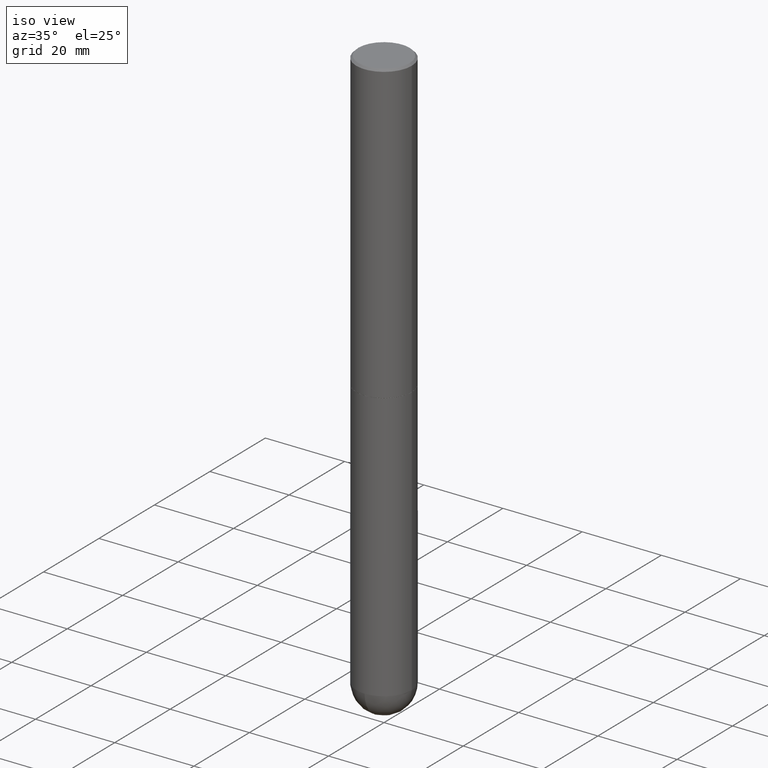
[diagram: clean part render]
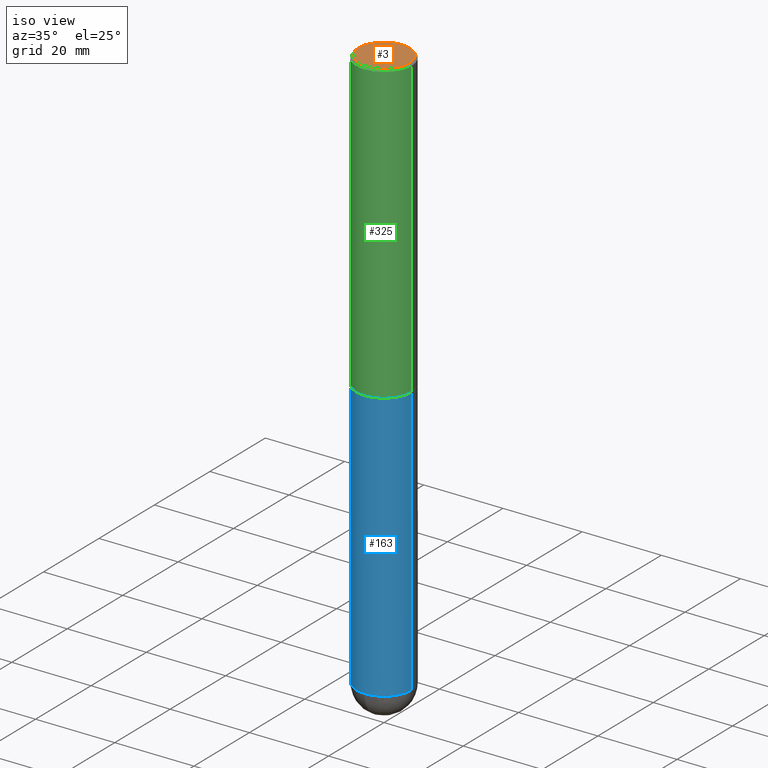
[diagram: same view with three faces highlighted in distinct colors, each labeled with its STEP entity id]
A machine part, iso view with three faces highlighted in distinct colors.
Their STEP definitions:

[orange] entity #3 — the highlighted planar face has unit normal (0, -0, -1).
#3 = ADVANCED_FACE ( 'NONE', ( #37 ), #167, .F. ) ;
#14 = DIRECTION ( 'NONE',  ( -2.445468806185136597E-29, 3.491481338843145583E-15, 1.000000000000000000 ) ) ;
#16 = AXIS2_PLACEMENT_3D ( 'NONE', #255, #389, #103 ) ;
#19 = CIRCLE ( 'NONE', #391, 0.2556000000000000494 ) ;
#25 = ORIENTED_EDGE ( 'NONE', *, *, #79, .T. ) ;
#37 = FACE_OUTER_BOUND ( 'NONE', #66, .T. ) ;
#64 = DIRECTION ( 'NONE',  ( -2.445468806185136597E-29, 3.491481338843145583E-15, 1.000000000000000000 ) ) ;
#65 = VERTEX_POINT ( 'NONE', #359 ) ;
#66 = EDGE_LOOP ( 'NONE', ( #25, #197 ) ) ;
#79 = EDGE_CURVE ( 'NONE', #65, #219, #97, .T. ) ;
#89 = CARTESIAN_POINT ( 'NONE',  ( 0.2556000000000000494, -1.857063081596550820E-15, -4.695363739109179444E-17 ) ) ;
#93 = CARTESIAN_POINT ( 'NONE',  ( 1.148236555768741665E-45, -1.639377487418492057E-31, -4.695363739110452099E-17 ) ) ;
#97 = CIRCLE ( 'NONE', #203, 0.2556000000000000494 ) ;
#103 = DIRECTION ( 'NONE',  ( -1.000000000000000000, 6.982962677686265922E-15, -4.876176775795935793E-29 ) ) ;
#167 = PLANE ( 'NONE',  #16 ) ;
#174 = CARTESIAN_POINT ( 'NONE',  ( 1.148236555768741665E-45, -1.639377487418492057E-31, -4.695363739110452099E-17 ) ) ;
#197 = ORIENTED_EDGE ( 'NONE', *, *, #207, .T. ) ;
#203 = AXIS2_PLACEMENT_3D ( 'NONE', #174, #14, #304 ) ;
#207 = EDGE_CURVE ( 'NONE', #219, #65, #19, .T. ) ;
#219 = VERTEX_POINT ( 'NONE', #89 ) ;
#255 = CARTESIAN_POINT ( 'NONE',  ( 1.784845260416609935E-15, 0.2556000000000000494, -9.158994489038604699E-16 ) ) ;
#304 = DIRECTION ( 'NONE',  ( 1.000000000000000000, -6.982962677686267499E-15, 4.876943595080612174E-29 ) ) ;
#359 = CARTESIAN_POINT ( 'NONE',  ( -0.2556000000000000494, 1.819760073805041190E-15, -4.695363739111712427E-17 ) ) ;
#389 = DIRECTION ( 'NONE',  ( 2.438088387897960049E-29, -3.491481338843145188E-15, -1.000000000000000000 ) ) ;
#391 = AXIS2_PLACEMENT_3D ( 'NONE', #93, #64, #402 ) ;
#402 = DIRECTION ( 'NONE',  ( 1.000000000000000000, -6.982962677686267499E-15, 4.876943595080612174E-29 ) ) ;

[blue] entity #163 — the highlighted cylindrical surface (edge-blend (fillet) strip) has radius 7.0002 mm, axis along (-0, 0, 1).
#10 = CARTESIAN_POINT ( 'NONE',  ( -1.958255779754700116E-15, -0.2756000000000199956, -5.629899999999999238 ) ) ;
#30 = VERTEX_POINT ( 'NONE', #10 ) ;
#54 = FACE_OUTER_BOUND ( 'NONE', #383, .T. ) ;
#57 = DIRECTION ( 'NONE',  ( 1.000000000000000000, -6.982962677686267499E-15, 4.876176775795935793E-29 ) ) ;
#62 = ORIENTED_EDGE ( 'NONE', *, *, #241, .F. ) ;
#75 = AXIS2_PLACEMENT_3D ( 'NONE', #267, #334, #171 ) ;
#100 = EDGE_CURVE ( 'NONE', #30, #286, #175, .T. ) ;
#104 = EDGE_CURVE ( 'NONE', #211, #148, #109, .T. ) ;
#109 = LINE ( 'NONE', #324, #407 ) ;
#114 = CARTESIAN_POINT ( 'NONE',  ( 0.000000000000000000, 0.000000000000000000, 0.000000000000000000 ) ) ;
#115 = ORIENTED_EDGE ( 'NONE', *, *, #100, .T. ) ;
#144 = DIRECTION ( 'NONE',  ( 1.000000000000000000, -6.982962677686265922E-15, 0.000000000000000000 ) ) ;
#146 = DIRECTION ( 'NONE',  ( -2.445468806185136597E-29, 3.491481338843145583E-15, 1.000000000000000000 ) ) ;
#148 = VERTEX_POINT ( 'NONE', #232 ) ;
#151 = CYLINDRICAL_SURFACE ( 'NONE', #277, 0.2756000000000000671 ) ;
#153 = ORIENTED_EDGE ( 'NONE', *, *, #322, .T. ) ;
#163 = ADVANCED_FACE ( 'NONE', ( #54 ), #151, .T. ) ;
#171 = DIRECTION ( 'NONE',  ( 1.000000000000000000, -6.982962677686264344E-15, 0.000000000000000000 ) ) ;
#175 = CIRCLE ( 'NONE', #196, 0.2756000000000000671 ) ;
#196 = AXIS2_PLACEMENT_3D ( 'NONE', #397, #201, #257 ) ;
#198 = LINE ( 'NONE', #320, #385 ) ;
#201 = DIRECTION ( 'NONE',  ( -2.445468806185136597E-29, 3.491481338843145583E-15, 1.000000000000000000 ) ) ;
#211 = VERTEX_POINT ( 'NONE', #243 ) ;
#227 = CARTESIAN_POINT ( 'NONE',  ( 0.2756000000000000671, -1.690749838334792865E-14, -5.629900000000000126 ) ) ;
#229 = VERTEX_POINT ( 'NONE', #342 ) ;
#232 = CARTESIAN_POINT ( 'NONE',  ( -0.2756000000000000116, -1.302473808962275237E-14, -2.952700000000000102 ) ) ;
#234 = AXIS2_PLACEMENT_3D ( 'NONE', #378, #146, #144 ) ;
#241 = EDGE_CURVE ( 'NONE', #148, #229, #317, .T. ) ;
#243 = CARTESIAN_POINT ( 'NONE',  ( -0.2756000000000000671, -1.302473808962275553E-14, -5.629900000000000126 ) ) ;
#257 = DIRECTION ( 'NONE',  ( 1.000000000000000000, -6.982962677686264344E-15, 0.000000000000000000 ) ) ;
#267 = CARTESIAN_POINT ( 'NONE',  ( 1.376774483194169922E-28, -1.965669078955302449E-14, -5.629900000000000126 ) ) ;
#277 = AXIS2_PLACEMENT_3D ( 'NONE', #114, #369, #57 ) ;
#285 = DIRECTION ( 'NONE',  ( -2.445468806185136877E-29, 3.491481338843145188E-15, 1.000000000000000000 ) ) ;
#286 = VERTEX_POINT ( 'NONE', #227 ) ;
#295 = DIRECTION ( 'NONE',  ( -2.445468806185136877E-29, 3.491481338843145188E-15, 1.000000000000000000 ) ) ;
#316 = ORIENTED_EDGE ( 'NONE', *, *, #393, .T. ) ;
#317 = CIRCLE ( 'NONE', #234, 0.2756000000000000116 ) ;
#319 = ORIENTED_EDGE ( 'NONE', *, *, #104, .F. ) ;
#320 = CARTESIAN_POINT ( 'NONE',  ( 0.2756000000000000671, -1.924504513970335743E-15, 1.343874319409360268E-29 ) ) ;
#322 = EDGE_CURVE ( 'NONE', #286, #229, #198, .T. ) ;
#324 = CARTESIAN_POINT ( 'NONE',  ( -0.2756000000000000671, 1.958255779754836589E-15, -1.355658510874252287E-29 ) ) ;
#334 = DIRECTION ( 'NONE',  ( -2.445468806185136597E-29, 3.491481338843145583E-15, 1.000000000000000000 ) ) ;
#341 = CIRCLE ( 'NONE', #75, 0.2756000000000000671 ) ;
#342 = CARTESIAN_POINT ( 'NONE',  ( 0.2756000000000000116, -1.223380146317248997E-14, -2.952700000000000102 ) ) ;
#369 = DIRECTION ( 'NONE',  ( -2.445468806185136597E-29, 3.491481338843145583E-15, 1.000000000000000000 ) ) ;
#378 = CARTESIAN_POINT ( 'NONE',  ( 7.220735744022852519E-29, -1.030929694920215502E-14, -2.952700000000000102 ) ) ;
#383 = EDGE_LOOP ( 'NONE', ( #319, #316, #115, #153, #62 ) ) ;
#385 = VECTOR ( 'NONE', #285, 39.37007874015748143 ) ;
#393 = EDGE_CURVE ( 'NONE', #211, #30, #341, .T. ) ;
#397 = CARTESIAN_POINT ( 'NONE',  ( 1.376774483194169922E-28, -1.965669078955302449E-14, -5.629900000000000126 ) ) ;
#407 = VECTOR ( 'NONE', #295, 39.37007874015748143 ) ;

[green] entity #325 — the highlighted cylindrical surface (edge-blend (fillet) strip) has radius 7.0002 mm, axis along (-0, 0, 1).
#4 = CYLINDRICAL_SURFACE ( 'NONE', #80, 0.2756000000000002337 ) ;
#12 = EDGE_CURVE ( 'NONE', #248, #194, #258, .T. ) ;
#17 = DIRECTION ( 'NONE',  ( -2.445468806185136597E-29, 3.491481338843145583E-15, 1.000000000000000000 ) ) ;
#31 = VERTEX_POINT ( 'NONE', #45 ) ;
#42 = DIRECTION ( 'NONE',  ( -2.445468806185136597E-29, 3.491481338843145583E-15, 1.000000000000000000 ) ) ;
#45 = CARTESIAN_POINT ( 'NONE',  ( -0.2756000000000000116, 1.854674887193472050E-15, -0.02000000000000006287 ) ) ;
#52 = CARTESIAN_POINT ( 'NONE',  ( 0.2756000000000004557, -1.223030998183365327E-14, -2.951700000000000212 ) ) ;
#58 = VECTOR ( 'NONE', #77, 39.37007874015748143 ) ;
#68 = AXIS2_PLACEMENT_3D ( 'NONE', #301, #42, #263 ) ;
#71 = CARTESIAN_POINT ( 'NONE',  ( 0.000000000000000000, 0.000000000000000000, 0.000000000000000000 ) ) ;
#77 = DIRECTION ( 'NONE',  ( -2.445468806185136877E-29, 3.491481338843145188E-15, 1.000000000000000000 ) ) ;
#80 = AXIS2_PLACEMENT_3D ( 'NONE', #71, #411, #200 ) ;
#87 = EDGE_CURVE ( 'NONE', #180, #31, #253, .T. ) ;
#91 = ORIENTED_EDGE ( 'NONE', *, *, #99, .F. ) ;
#99 = EDGE_CURVE ( 'NONE', #31, #194, #102, .T. ) ;
#102 = CIRCLE ( 'NONE', #68, 0.2756000000000000116 ) ;
#105 = DIRECTION ( 'NONE',  ( -2.445468806185136877E-29, 3.491481338843145188E-15, 1.000000000000000000 ) ) ;
#164 = VECTOR ( 'NONE', #105, 39.37007874015748143 ) ;
#180 = VERTEX_POINT ( 'NONE', #222 ) ;
#186 = EDGE_LOOP ( 'NONE', ( #193, #344, #381, #91 ) ) ;
#192 = CARTESIAN_POINT ( 'NONE',  ( 7.218290275216666916E-29, -1.030580546786331359E-14, -2.951700000000000212 ) ) ;
#193 = ORIENTED_EDGE ( 'NONE', *, *, #87, .F. ) ;
#194 = VERTEX_POINT ( 'NONE', #218 ) ;
#200 = DIRECTION ( 'NONE',  ( 1.000000000000000000, -6.982962677686267499E-15, 4.876176775795935793E-29 ) ) ;
#209 = AXIS2_PLACEMENT_3D ( 'NONE', #192, #17, #315 ) ;
#215 = CIRCLE ( 'NONE', #209, 0.2756000000000004557 ) ;
#218 = CARTESIAN_POINT ( 'NONE',  ( 0.2756000000000000116, -1.960582874962697406E-15, -0.02000000000000006287 ) ) ;
#222 = CARTESIAN_POINT ( 'NONE',  ( -0.2756000000000004002, -3.229561767565246331E-15, -2.951700000000000212 ) ) ;
#231 = CARTESIAN_POINT ( 'NONE',  ( 0.2756000000000002337, -1.924504513970336926E-15, 1.343874319409361109E-29 ) ) ;
#236 = EDGE_CURVE ( 'NONE', #180, #248, #215, .T. ) ;
#248 = VERTEX_POINT ( 'NONE', #52 ) ;
#253 = LINE ( 'NONE', #388, #164 ) ;
#258 = LINE ( 'NONE', #231, #58 ) ;
#263 = DIRECTION ( 'NONE',  ( 1.000000000000000000, -6.982962677686267499E-15, 0.000000000000000000 ) ) ;
#301 = CARTESIAN_POINT ( 'NONE',  ( 4.890937612370288923E-31, -6.982962677686312563E-17, -0.02000000000000006287 ) ) ;
#315 = DIRECTION ( 'NONE',  ( 1.000000000000000000, -6.982962677686269077E-15, 0.000000000000000000 ) ) ;
#325 = ADVANCED_FACE ( 'NONE', ( #326 ), #4, .T. ) ;
#326 = FACE_OUTER_BOUND ( 'NONE', #186, .T. ) ;
#344 = ORIENTED_EDGE ( 'NONE', *, *, #236, .T. ) ;
#381 = ORIENTED_EDGE ( 'NONE', *, *, #12, .T. ) ;
#388 = CARTESIAN_POINT ( 'NONE',  ( -0.2756000000000002337, 1.958255779754837773E-15, -1.355658510874253128E-29 ) ) ;
#411 = DIRECTION ( 'NONE',  ( -2.445468806185136597E-29, 3.491481338843145583E-15, 1.000000000000000000 ) ) ;